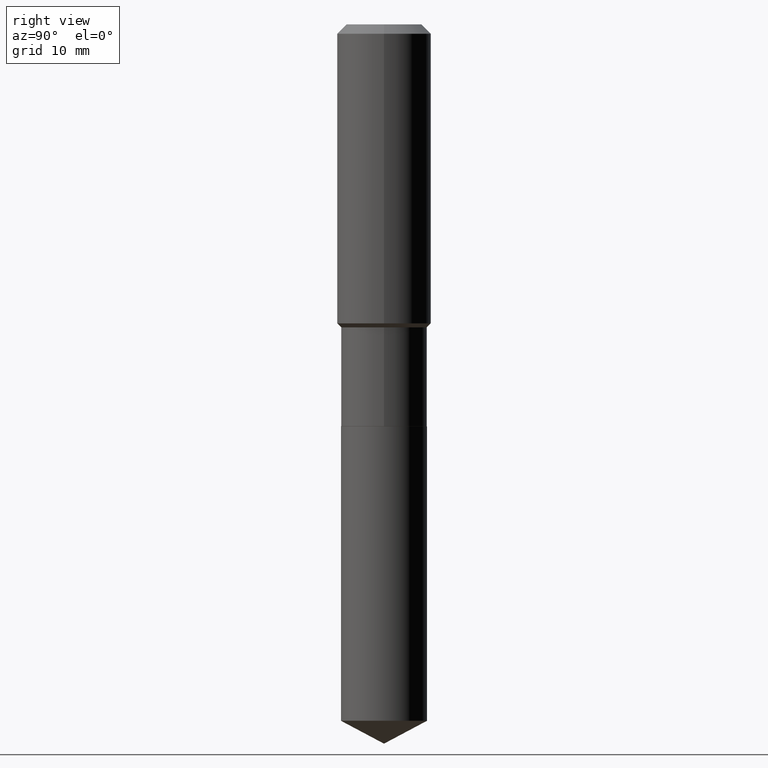
[diagram: clean part render]
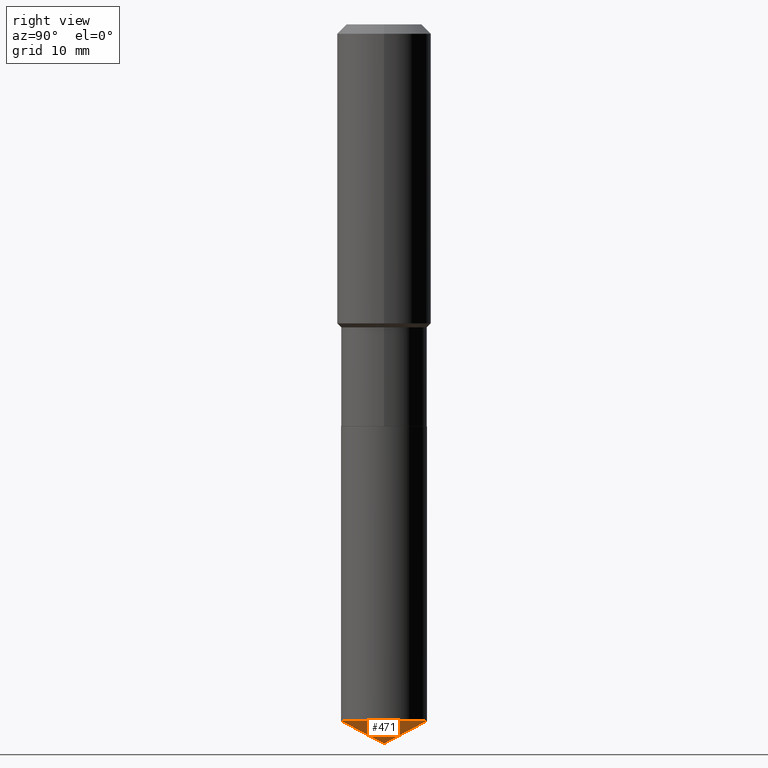
[diagram: same view with one face highlighted and labeled with its STEP entity id]
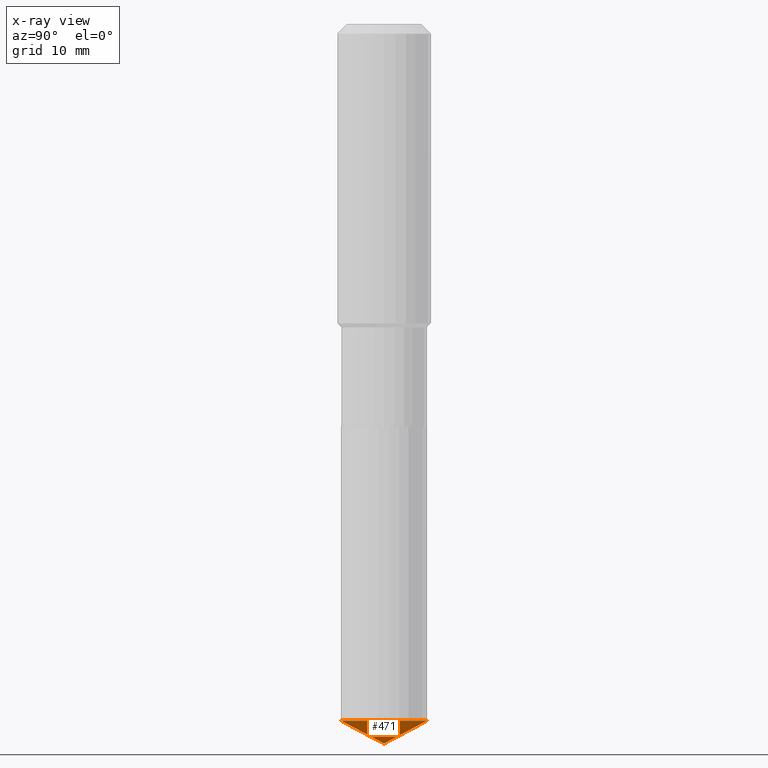
[diagram: x-ray of the same camera — body ghosted, the highlighted face saturated]
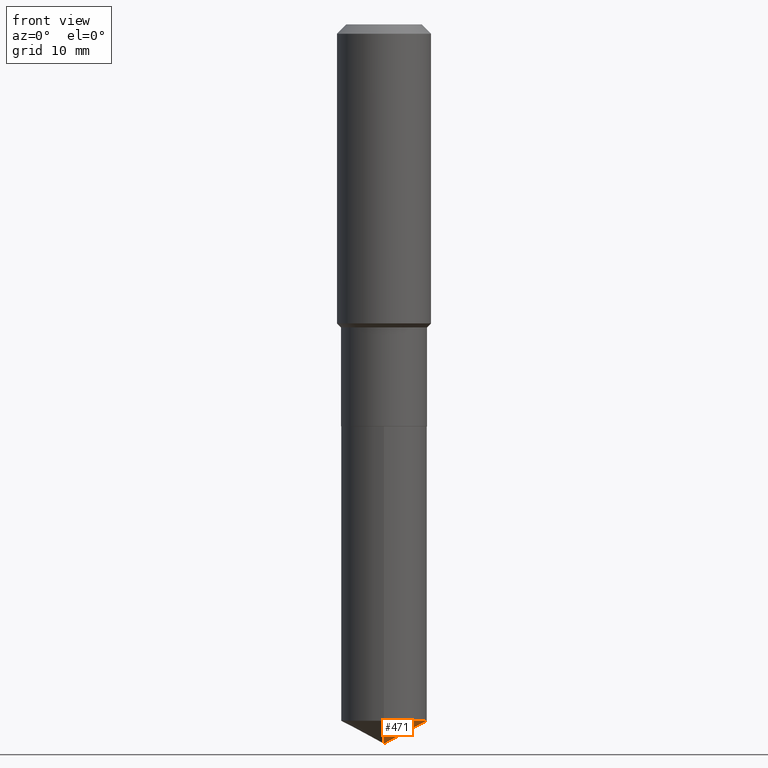
[diagram: same view with one face highlighted and labeled with its STEP entity id]
A machine part, right view. The second image highlights one B-rep face of the part: STEP entity #471.
The next image is the same camera in x-ray: the body ghosted, the highlighted face saturated — about 0% of this face is hidden behind the body in this view.
A second angle (front view) of the same face is appended — the face is thin or edge-on in the first view.
In plain terms, the highlighted conical surface has half-angle 62 deg.
Its self-contained STEP definition (entity closure, byte-faithful):
#2 = EDGE_LOOP ( 'NONE', ( #100, #408, #293 ) ) ;
#5 = EDGE_CURVE ( 'NONE', #39, #18, #113, .T. ) ;
#11 = DIRECTION ( 'NONE',  ( -6.982962677686265922E-15, -1.000000000000000000, 4.337127197720600657E-15 ) ) ;
#18 = VERTEX_POINT ( 'NONE', #71 ) ;
#29 = CARTESIAN_POINT ( 'NONE',  ( 1.030198585258308093E-28, -1.470794465170432183E-14, -4.212600000000000122 ) ) ;
#38 = AXIS2_PLACEMENT_3D ( 'NONE', #81, #227, #377 ) ;
#39 = VERTEX_POINT ( 'NONE', #91 ) ;
#61 = CARTESIAN_POINT ( 'NONE',  ( 1.030018275238184418E-28, -1.471050434830091067E-14, -4.212600000000000122 ) ) ;
#71 = CARTESIAN_POINT ( 'NONE',  ( 1.790212422747671867E-15, 0.2519499999999857409, -4.078635808692893328 ) ) ;
#81 = CARTESIAN_POINT ( 'NONE',  ( -8.596227775720360150E-28, 1.227720731546609541E-13, 35.15747874015747954 ) ) ;
#91 = CARTESIAN_POINT ( 'NONE',  ( 1.030018275238184418E-28, -1.471050434830091067E-14, -4.212600000000000122 ) ) ;
#100 = ORIENTED_EDGE ( 'NONE', *, *, #400, .F. ) ;
#113 = LINE ( 'NONE', #29, #396 ) ;
#201 = CARTESIAN_POINT ( 'NONE',  ( 9.973522068687030357E-29, -1.424141820015458017E-14, -4.078635808692891551 ) ) ;
#212 = DIRECTION ( 'NONE',  ( -6.165590087286839185E-15, -0.8829475928589269884, 0.4694715627858906393 ) ) ;
#227 = DIRECTION ( 'NONE',  ( -2.445089197261036539E-29, 3.492024960428454996E-15, 1.000000000000000000 ) ) ;
#261 = VERTEX_POINT ( 'NONE', #412 ) ;
#271 = FACE_OUTER_BOUND ( 'NONE', #2, .T. ) ;
#277 = CIRCLE ( 'NONE', #439, 0.2519500000000000073 ) ;
#293 = ORIENTED_EDGE ( 'NONE', *, *, #294, .F. ) ;
#294 = EDGE_CURVE ( 'NONE', #261, #18, #277, .T. ) ;
#342 = DIRECTION ( 'NONE',  ( -2.445089197261036539E-29, 3.492024960428454996E-15, 1.000000000000000000 ) ) ;
#355 = LINE ( 'NONE', #61, #467 ) ;
#377 = DIRECTION ( 'NONE',  ( -6.982962677686264344E-15, -1.000000000000000000, 3.541896320645547064E-15 ) ) ;
#389 = CONICAL_SURFACE ( 'NONE', #38, 74.04434902938382379, 1.082104136236488046 ) ;
#396 = VECTOR ( 'NONE', #404, 39.37007874015748143 ) ;
#400 = EDGE_CURVE ( 'NONE', #39, #261, #355, .T. ) ;
#404 = DIRECTION ( 'NONE',  ( 6.273719981627770021E-15, 0.8829475928589302081, 0.4694715627858844220 ) ) ;
#408 = ORIENTED_EDGE ( 'NONE', *, *, #5, .T. ) ;
#412 = CARTESIAN_POINT ( 'NONE',  ( -1.759357446642955206E-15, -0.2519500000000142181, -4.078635808692890663 ) ) ;
#439 = AXIS2_PLACEMENT_3D ( 'NONE', #201, #342, #11 ) ;
#467 = VECTOR ( 'NONE', #212, 39.37007874015748854 ) ;
#471 = ADVANCED_FACE ( 'NONE', ( #271 ), #389, .T. ) ;